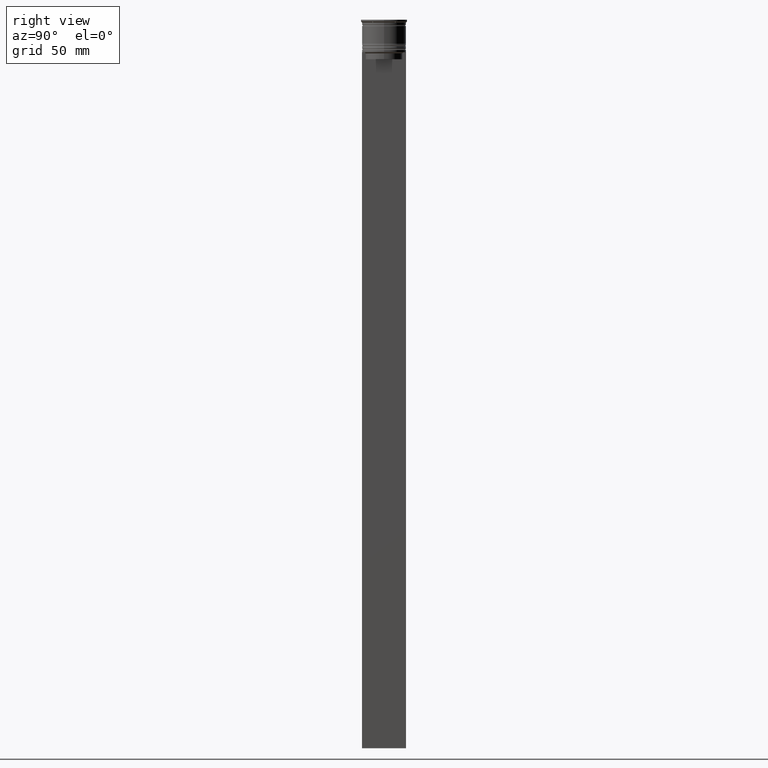
[diagram: clean part render]
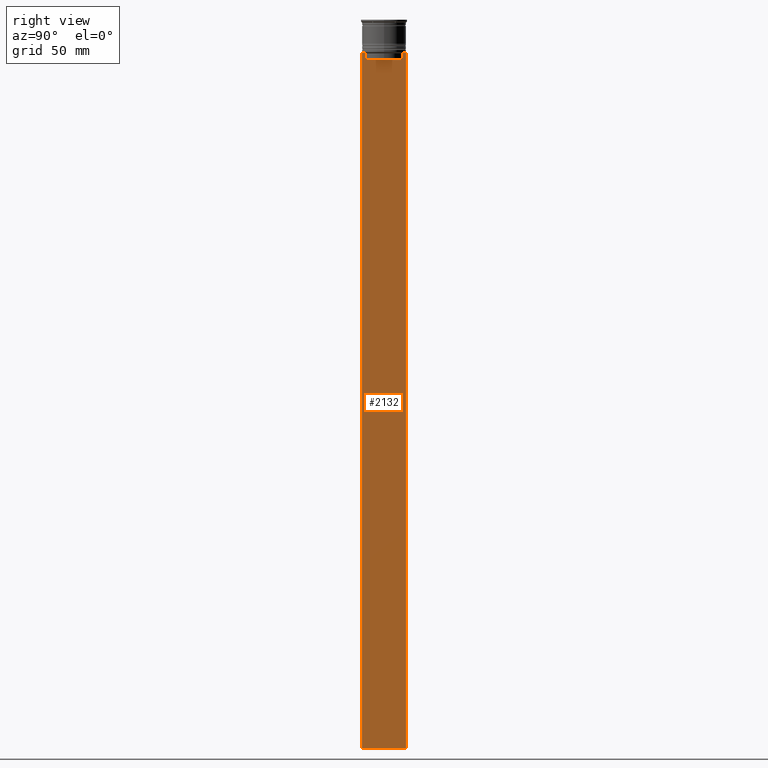
[diagram: same view with one face highlighted and labeled with its STEP entity id]
A machine part, right view. The second image highlights one B-rep face of the part: STEP entity #2132.
In plain terms, the highlighted planar face has unit normal (-1, 0, 0).
Its self-contained STEP definition (entity closure, byte-faithful):
#1 = VECTOR ( 'NONE', #2636, 1000.000000000000000 ) ;
#16 = VERTEX_POINT ( 'NONE', #1930 ) ;
#33 = EDGE_LOOP ( 'NONE', ( #501, #1569, #301, #2625, #2453, #431, #718, #1944, #462, #330, #607, #2527 ) ) ;
#68 = CARTESIAN_POINT ( 'NONE',  ( 0.5000000000000000000, -9.500000000000001776, -14.00000000000000178 ) ) ;
#133 = DIRECTION ( 'NONE',  ( 0.000000000000000000, 0.000000000000000000, -1.000000000000000000 ) ) ;
#226 = VECTOR ( 'NONE', #1520, 1000.000000000000000 ) ;
#231 = CARTESIAN_POINT ( 'NONE',  ( 0.5000000000000000000, -8.385105843100605583, -14.00000000000000178 ) ) ;
#263 = DIRECTION ( 'NONE',  ( -1.000000000000000000, 0.000000000000000000, 0.000000000000000000 ) ) ;
#267 = CARTESIAN_POINT ( 'NONE',  ( 0.5000000000000000000, -9.500000000000001776, -14.00000000000000178 ) ) ;
#301 = ORIENTED_EDGE ( 'NONE', *, *, #1020, .T. ) ;
#321 = CARTESIAN_POINT ( 'NONE',  ( 0.5000000000000000000, -9.500000000000001776, 5.026297590440445440 ) ) ;
#322 = CARTESIAN_POINT ( 'NONE',  ( 0.5000000000000000000, -9.500000000000001776, -314.0000000000000000 ) ) ;
#330 = ORIENTED_EDGE ( 'NONE', *, *, #2499, .T. ) ;
#352 = AXIS2_PLACEMENT_3D ( 'NONE', #2116, #263, #463 ) ;
#381 = CARTESIAN_POINT ( 'NONE',  ( 0.5000000000000000000, 9.386692708297204035, -14.00000000000000178 ) ) ;
#386 = VERTEX_POINT ( 'NONE', #1007 ) ;
#395 = CARTESIAN_POINT ( 'NONE',  ( 0.5000000000000000000, 9.499999999999998224, 5.026297590440445440 ) ) ;
#431 = ORIENTED_EDGE ( 'NONE', *, *, #1895, .T. ) ;
#452 = CARTESIAN_POINT ( 'NONE',  ( 0.5000000000000000000, 9.499999999999998224, -14.00000000000000178 ) ) ;
#462 = ORIENTED_EDGE ( 'NONE', *, *, #1853, .T. ) ;
#463 = DIRECTION ( 'NONE',  ( 0.000000000000000000, 0.000000000000000000, 1.000000000000000000 ) ) ;
#488 = EDGE_CURVE ( 'NONE', #2016, #2668, #1116, .T. ) ;
#501 = ORIENTED_EDGE ( 'NONE', *, *, #488, .T. ) ;
#583 = FACE_OUTER_BOUND ( 'NONE', #33, .T. ) ;
#594 = B_SPLINE_CURVE_WITH_KNOTS ( 'NONE', 3,
 ( #2534, #2330, #2523, #697 ),
 .UNSPECIFIED., .F., .F.,
 ( 4, 4 ),
 ( 0.01426761478740281447, 0.01497538974438914448 ),
 .UNSPECIFIED. ) ;
#606 = DIRECTION ( 'NONE',  ( 0.000000000000000000, 1.000000000000000000, 0.000000000000000000 ) ) ;
#607 = ORIENTED_EDGE ( 'NONE', *, *, #2059, .F. ) ;
#648 = CARTESIAN_POINT ( 'NONE',  ( 0.5000000000000000000, 8.385105843100605583, -14.00000000000000178 ) ) ;
#697 = CARTESIAN_POINT ( 'NONE',  ( 0.5000000000000000000, 7.884161337770803080, -14.50000000000000000 ) ) ;
#718 = ORIENTED_EDGE ( 'NONE', *, *, #2024, .T. ) ;
#724 = DIRECTION ( 'NONE',  ( 0.000000000000000000, 0.000000000000000000, -1.000000000000000000 ) ) ;
#762 = LINE ( 'NONE', #322, #1599 ) ;
#770 = EDGE_CURVE ( 'NONE', #386, #2485, #1671, .T. ) ;
#792 = LINE ( 'NONE', #2218, #877 ) ;
#820 = VECTOR ( 'NONE', #724, 1000.000000000000000 ) ;
#877 = VECTOR ( 'NONE', #133, 1000.000000000000000 ) ;
#909 = DIRECTION ( 'NONE',  ( 0.000000000000000000, -1.000000000000000000, 0.000000000000000000 ) ) ;
#972 = CARTESIAN_POINT ( 'NONE',  ( 0.5000000000000000000, -9.500000000000001776, -314.0000000000000000 ) ) ;
#1006 = VECTOR ( 'NONE', #1442, 1000.000000000000000 ) ;
#1007 = CARTESIAN_POINT ( 'NONE',  ( 0.5000000000000000000, 7.884161337770803080, -17.00000000000000000 ) ) ;
#1018 = LINE ( 'NONE', #395, #2032 ) ;
#1020 = EDGE_CURVE ( 'NONE', #16, #386, #792, .T. ) ;
#1041 = CARTESIAN_POINT ( 'NONE',  ( 0.5000000000000000000, 7.899999999999994138, -17.00000000000000000 ) ) ;
#1051 = DIRECTION ( 'NONE',  ( -0.000000000000000000, -0.000000000000000000, 1.000000000000000000 ) ) ;
#1107 = LINE ( 'NONE', #68, #226 ) ;
#1116 = LINE ( 'NONE', #2117, #1135 ) ;
#1135 = VECTOR ( 'NONE', #909, 1000.000000000000000 ) ;
#1203 = CARTESIAN_POINT ( 'NONE',  ( 0.5000000000000000000, -9.500000000000001776, -14.00000000000000178 ) ) ;
#1245 = LINE ( 'NONE', #1203, #1 ) ;
#1260 = DIRECTION ( 'NONE',  ( 0.000000000000000000, 0.000000000000000000, -1.000000000000000000 ) ) ;
#1269 = VERTEX_POINT ( 'NONE', #231 ) ;
#1285 = PLANE ( 'NONE',  #352 ) ;
#1347 = VERTEX_POINT ( 'NONE', #1496 ) ;
#1367 = CARTESIAN_POINT ( 'NONE',  ( 0.5000000000000000000, -8.385105843100605583, -14.00000000000000178 ) ) ;
#1434 = LINE ( 'NONE', #1633, #2125 ) ;
#1442 = DIRECTION ( 'NONE',  ( 0.000000000000000000, -1.000000000000000000, 0.000000000000000000 ) ) ;
#1450 = LINE ( 'NONE', #2277, #2595 ) ;
#1496 = CARTESIAN_POINT ( 'NONE',  ( 0.5000000000000000000, 9.499999999999998224, -314.0000000000000000 ) ) ;
#1512 = VERTEX_POINT ( 'NONE', #972 ) ;
#1520 = DIRECTION ( 'NONE',  ( 0.000000000000000000, -1.000000000000000000, 0.000000000000000000 ) ) ;
#1569 = ORIENTED_EDGE ( 'NONE', *, *, #2446, .T. ) ;
#1594 = CARTESIAN_POINT ( 'NONE',  ( 0.5000000000000000000, -8.051152795888546265, -14.33334334204685057 ) ) ;
#1599 = VECTOR ( 'NONE', #606, 1000.000000000000000 ) ;
#1633 = CARTESIAN_POINT ( 'NONE',  ( 0.5000000000000000000, -7.884161337770803080, 0.000000000000000000 ) ) ;
#1671 = LINE ( 'NONE', #1041, #1006 ) ;
#1677 = CARTESIAN_POINT ( 'NONE',  ( 0.5000000000000000000, -7.884161337770803080, -17.00000000000000000 ) ) ;
#1838 = VERTEX_POINT ( 'NONE', #452 ) ;
#1853 = EDGE_CURVE ( 'NONE', #2480, #1512, #2008, .T. ) ;
#1895 = EDGE_CURVE ( 'NONE', #2629, #1269, #2570, .T. ) ;
#1930 = CARTESIAN_POINT ( 'NONE',  ( 0.5000000000000000000, 7.884161337770803080, -14.50000000000000000 ) ) ;
#1944 = ORIENTED_EDGE ( 'NONE', *, *, #2385, .T. ) ;
#2008 = LINE ( 'NONE', #321, #820 ) ;
#2016 = VERTEX_POINT ( 'NONE', #381 ) ;
#2024 = EDGE_CURVE ( 'NONE', #1269, #2123, #1245, .T. ) ;
#2032 = VECTOR ( 'NONE', #1260, 1000.000000000000000 ) ;
#2059 = EDGE_CURVE ( 'NONE', #1838, #1347, #1018, .T. ) ;
#2116 = CARTESIAN_POINT ( 'NONE',  ( 0.5000000000000000000, -9.500000000000001776, 5.026297590440445440 ) ) ;
#2117 = CARTESIAN_POINT ( 'NONE',  ( 0.5000000000000000000, -9.500000000000001776, -14.00000000000000178 ) ) ;
#2123 = VERTEX_POINT ( 'NONE', #2475 ) ;
#2125 = VECTOR ( 'NONE', #1051, 1000.000000000000000 ) ;
#2132 = ADVANCED_FACE ( 'NONE', ( #583 ), #1285, .F. ) ;
#2172 = CARTESIAN_POINT ( 'NONE',  ( 0.5000000000000000000, -7.884161337770803080, -14.50000000000000000 ) ) ;
#2218 = CARTESIAN_POINT ( 'NONE',  ( 0.5000000000000000000, 7.884161337770803080, 0.000000000000000000 ) ) ;
#2249 = DIRECTION ( 'NONE',  ( 0.000000000000000000, -1.000000000000000000, 0.000000000000000000 ) ) ;
#2272 = EDGE_CURVE ( 'NONE', #2485, #2629, #1434, .T. ) ;
#2277 = CARTESIAN_POINT ( 'NONE',  ( 0.5000000000000000000, -9.500000000000001776, -14.00000000000000178 ) ) ;
#2306 = EDGE_CURVE ( 'NONE', #1838, #2016, #1450, .T. ) ;
#2330 = CARTESIAN_POINT ( 'NONE',  ( 0.5000000000000000000, 8.218133718559618828, -14.16667606394327983 ) ) ;
#2385 = EDGE_CURVE ( 'NONE', #2123, #2480, #1107, .T. ) ;
#2419 = CARTESIAN_POINT ( 'NONE',  ( 0.5000000000000000000, -8.218133703942523738, -14.16667607853445787 ) ) ;
#2446 = EDGE_CURVE ( 'NONE', #2668, #16, #594, .T. ) ;
#2453 = ORIENTED_EDGE ( 'NONE', *, *, #2272, .T. ) ;
#2475 = CARTESIAN_POINT ( 'NONE',  ( 0.5000000000000000000, -9.386692708297204035, -14.00000000000000178 ) ) ;
#2480 = VERTEX_POINT ( 'NONE', #267 ) ;
#2485 = VERTEX_POINT ( 'NONE', #1677 ) ;
#2499 = EDGE_CURVE ( 'NONE', #1512, #1347, #762, .T. ) ;
#2523 = CARTESIAN_POINT ( 'NONE',  ( 0.5000000000000000000, 8.051152811434374001, -14.33334332653219079 ) ) ;
#2527 = ORIENTED_EDGE ( 'NONE', *, *, #2306, .T. ) ;
#2534 = CARTESIAN_POINT ( 'NONE',  ( 0.5000000000000000000, 8.385105843100605583, -14.00000000000000178 ) ) ;
#2570 = B_SPLINE_CURVE_WITH_KNOTS ( 'NONE', 3,
 ( #2627, #1594, #2419, #1367 ),
 .UNSPECIFIED., .F., .F.,
 ( 4, 4 ),
 ( 0.03673372442973153046, 0.03744389749832059688 ),
 .UNSPECIFIED. ) ;
#2595 = VECTOR ( 'NONE', #2249, 1000.000000000000000 ) ;
#2625 = ORIENTED_EDGE ( 'NONE', *, *, #770, .T. ) ;
#2627 = CARTESIAN_POINT ( 'NONE',  ( 0.5000000000000000000, -7.884161337770803080, -14.50000000000000000 ) ) ;
#2629 = VERTEX_POINT ( 'NONE', #2172 ) ;
#2636 = DIRECTION ( 'NONE',  ( 0.000000000000000000, -1.000000000000000000, 0.000000000000000000 ) ) ;
#2668 = VERTEX_POINT ( 'NONE', #648 ) ;